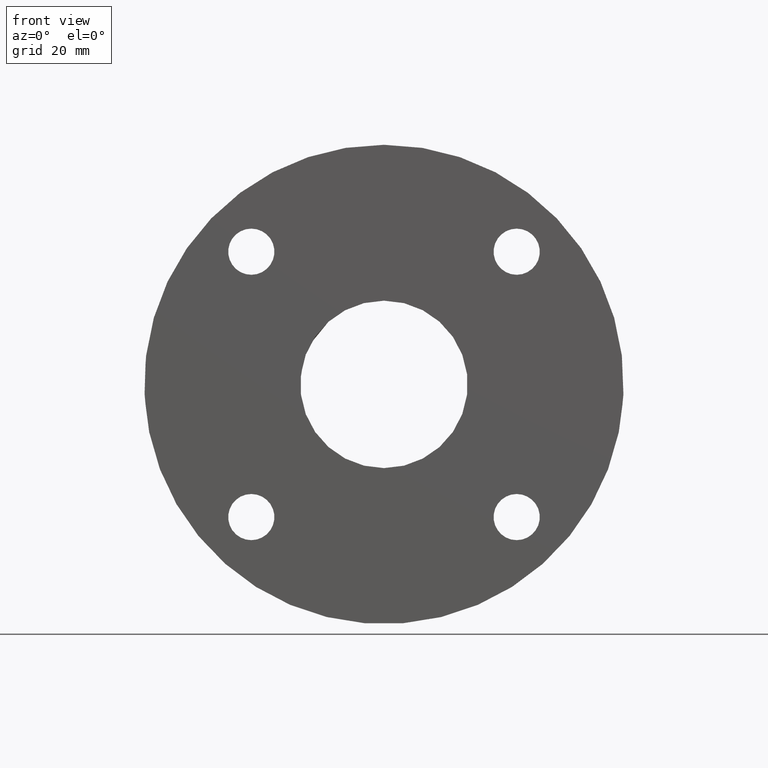
[diagram: clean part render]
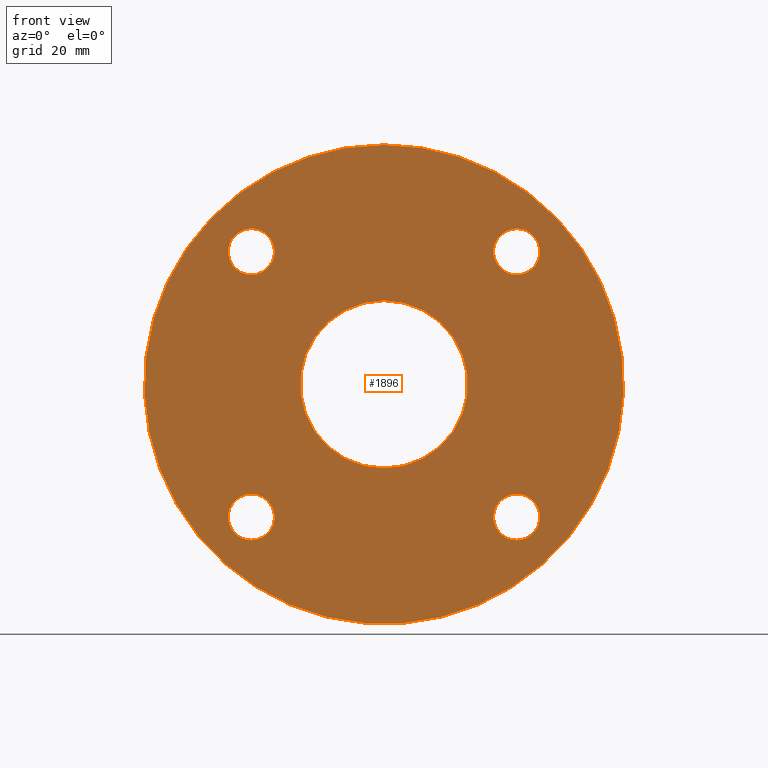
[diagram: same view with one face highlighted and labeled with its STEP entity id]
A machine part, front view. The second image highlights one B-rep face of the part: STEP entity #1896.
In plain terms, the highlighted planar face has unit normal (0, 1, 0).
Its self-contained STEP definition (entity closure, byte-faithful):
#476 = ORIENTED_EDGE ( 'NONE', *, *, #8878, .F. ) ;
#776 = EDGE_LOOP ( 'NONE', ( #2516 ) ) ;
#964 = VERTEX_POINT ( 'NONE', #10023 ) ;
#1378 = ORIENTED_EDGE ( 'NONE', *, *, #8816, .T. ) ;
#1874 = AXIS2_PLACEMENT_3D ( 'NONE', #10548, #4223, #14218 ) ;
#1896 = ADVANCED_FACE ( 'NONE', ( #7183, #10241, #13329, #4273, #4420, #4100 ), #6436, .F. ) ;
#1987 = DIRECTION ( 'NONE',  ( 0.000000000000000000, 1.000000000000000000, 0.000000000000000000 ) ) ;
#2139 = CARTESIAN_POINT ( 'NONE',  ( 22.98097038856279184, 0.000000000000000000, -22.98097038856279895 ) ) ;
#2173 = DIRECTION ( 'NONE',  ( 0.000000000000000000, -0.000000000000000000, 1.000000000000000000 ) ) ;
#2319 = CARTESIAN_POINT ( 'NONE',  ( 0.000000000000000000, 0.000000000000000000, 0.000000000000000000 ) ) ;
#2516 = ORIENTED_EDGE ( 'NONE', *, *, #9861, .T. ) ;
#2672 = EDGE_LOOP ( 'NONE', ( #11952 ) ) ;
#2916 = EDGE_LOOP ( 'NONE', ( #4275 ) ) ;
#3495 = CIRCLE ( 'NONE', #1874, 3.999999999999996447 ) ;
#3690 = AXIS2_PLACEMENT_3D ( 'NONE', #12973, #11965, #8653 ) ;
#3904 = VERTEX_POINT ( 'NONE', #4417 ) ;
#3958 = DIRECTION ( 'NONE',  ( 0.000000000000000000, 1.000000000000000000, 0.000000000000000000 ) ) ;
#4100 = FACE_OUTER_BOUND ( 'NONE', #12534, .T. ) ;
#4108 = AXIS2_PLACEMENT_3D ( 'NONE', #10760, #1987, #2173 ) ;
#4223 = DIRECTION ( 'NONE',  ( 0.000000000000000000, 1.000000000000000000, 0.000000000000000000 ) ) ;
#4273 = FACE_BOUND ( 'NONE', #2916, .T. ) ;
#4275 = ORIENTED_EDGE ( 'NONE', *, *, #6552, .T. ) ;
#4417 = CARTESIAN_POINT ( 'NONE',  ( 22.98097038856279184, 0.000000000000000000, -18.98097038856279539 ) ) ;
#4420 = FACE_BOUND ( 'NONE', #2672, .T. ) ;
#4513 = CARTESIAN_POINT ( 'NONE',  ( -22.98097038856279184, 0.000000000000000000, 26.98097038856279539 ) ) ;
#4735 = DIRECTION ( 'NONE',  ( 0.000000000000000000, 1.000000000000000000, 0.000000000000000000 ) ) ;
#4842 = CIRCLE ( 'NONE', #3690, 14.50000000000000000 ) ;
#5050 = DIRECTION ( 'NONE',  ( 0.000000000000000000, 0.000000000000000000, 1.000000000000000000 ) ) ;
#5110 = EDGE_LOOP ( 'NONE', ( #1378 ) ) ;
#5280 = VERTEX_POINT ( 'NONE', #8784 ) ;
#5510 = ORIENTED_EDGE ( 'NONE', *, *, #10370, .T. ) ;
#5519 = CARTESIAN_POINT ( 'NONE',  ( 0.000000000000000000, 0.000000000000000000, -14.50000000000000000 ) ) ;
#5603 = DIRECTION ( 'NONE',  ( 0.000000000000000000, 0.000000000000000000, 1.000000000000000000 ) ) ;
#5791 = CARTESIAN_POINT ( 'NONE',  ( 22.98097038856279539, 0.000000000000000000, 22.98097038856278829 ) ) ;
#6436 = PLANE ( 'NONE',  #4108 ) ;
#6552 = EDGE_CURVE ( 'NONE', #8019, #8019, #7962, .T. ) ;
#6645 = AXIS2_PLACEMENT_3D ( 'NONE', #2139, #7508, #13048 ) ;
#7164 = VERTEX_POINT ( 'NONE', #5519 ) ;
#7183 = FACE_BOUND ( 'NONE', #13378, .T. ) ;
#7370 = EDGE_CURVE ( 'NONE', #7164, #7164, #4842, .T. ) ;
#7508 = DIRECTION ( 'NONE',  ( 0.000000000000000000, 1.000000000000000000, 0.000000000000000000 ) ) ;
#7962 = CIRCLE ( 'NONE', #8627, 4.000000000000000000 ) ;
#8019 = VERTEX_POINT ( 'NONE', #9975 ) ;
#8627 = AXIS2_PLACEMENT_3D ( 'NONE', #13865, #3958, #5050 ) ;
#8653 = DIRECTION ( 'NONE',  ( 0.000000000000000000, 0.000000000000000000, -1.000000000000000000 ) ) ;
#8784 = CARTESIAN_POINT ( 'NONE',  ( 0.000000000000000000, 0.000000000000000000, 41.50000000000000000 ) ) ;
#8816 = EDGE_CURVE ( 'NONE', #3904, #3904, #13233, .T. ) ;
#8878 = EDGE_CURVE ( 'NONE', #5280, #5280, #10326, .T. ) ;
#9861 = EDGE_CURVE ( 'NONE', #964, #964, #10137, .T. ) ;
#9971 = DIRECTION ( 'NONE',  ( 0.000000000000000000, 1.000000000000000000, 0.000000000000000000 ) ) ;
#9975 = CARTESIAN_POINT ( 'NONE',  ( -22.98097038856279184, 0.000000000000000000, -18.98097038856279539 ) ) ;
#10023 = CARTESIAN_POINT ( 'NONE',  ( 22.98097038856279539, 0.000000000000000000, 26.98097038856279184 ) ) ;
#10137 = CIRCLE ( 'NONE', #13798, 4.000000000000003553 ) ;
#10241 = FACE_BOUND ( 'NONE', #776, .T. ) ;
#10326 = CIRCLE ( 'NONE', #11603, 41.50000000000000000 ) ;
#10370 = EDGE_CURVE ( 'NONE', #10607, #10607, #3495, .T. ) ;
#10548 = CARTESIAN_POINT ( 'NONE',  ( -22.98097038856279184, 0.000000000000000000, 22.98097038856279895 ) ) ;
#10607 = VERTEX_POINT ( 'NONE', #4513 ) ;
#10760 = CARTESIAN_POINT ( 'NONE',  ( 0.000000000000000000, 0.000000000000000000, 0.000000000000000000 ) ) ;
#11603 = AXIS2_PLACEMENT_3D ( 'NONE', #2319, #9971, #5603 ) ;
#11952 = ORIENTED_EDGE ( 'NONE', *, *, #7370, .F. ) ;
#11965 = DIRECTION ( 'NONE',  ( 0.000000000000000000, -1.000000000000000000, 0.000000000000000000 ) ) ;
#12534 = EDGE_LOOP ( 'NONE', ( #476 ) ) ;
#12973 = CARTESIAN_POINT ( 'NONE',  ( 0.000000000000000000, 0.000000000000000000, 0.000000000000000000 ) ) ;
#13048 = DIRECTION ( 'NONE',  ( 0.000000000000000000, 0.000000000000000000, 1.000000000000000000 ) ) ;
#13233 = CIRCLE ( 'NONE', #6645, 4.000000000000003553 ) ;
#13329 = FACE_BOUND ( 'NONE', #5110, .T. ) ;
#13378 = EDGE_LOOP ( 'NONE', ( #5510 ) ) ;
#13744 = DIRECTION ( 'NONE',  ( 0.000000000000000000, 0.000000000000000000, 1.000000000000000000 ) ) ;
#13798 = AXIS2_PLACEMENT_3D ( 'NONE', #5791, #4735, #13744 ) ;
#13865 = CARTESIAN_POINT ( 'NONE',  ( -22.98097038856279184, 0.000000000000000000, -22.98097038856279539 ) ) ;
#14218 = DIRECTION ( 'NONE',  ( 0.000000000000000000, 0.000000000000000000, 1.000000000000000000 ) ) ;